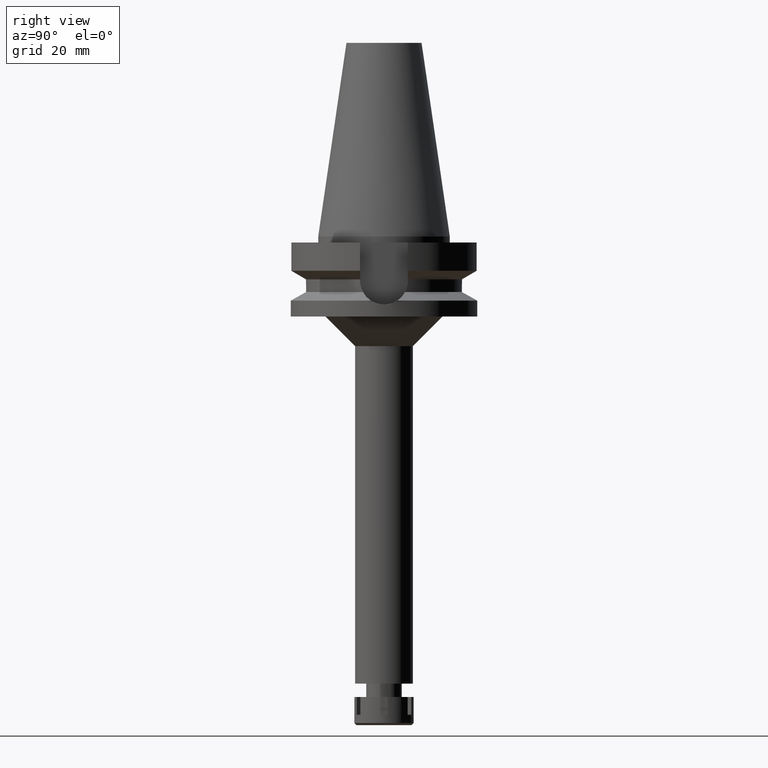
[diagram: clean part render]
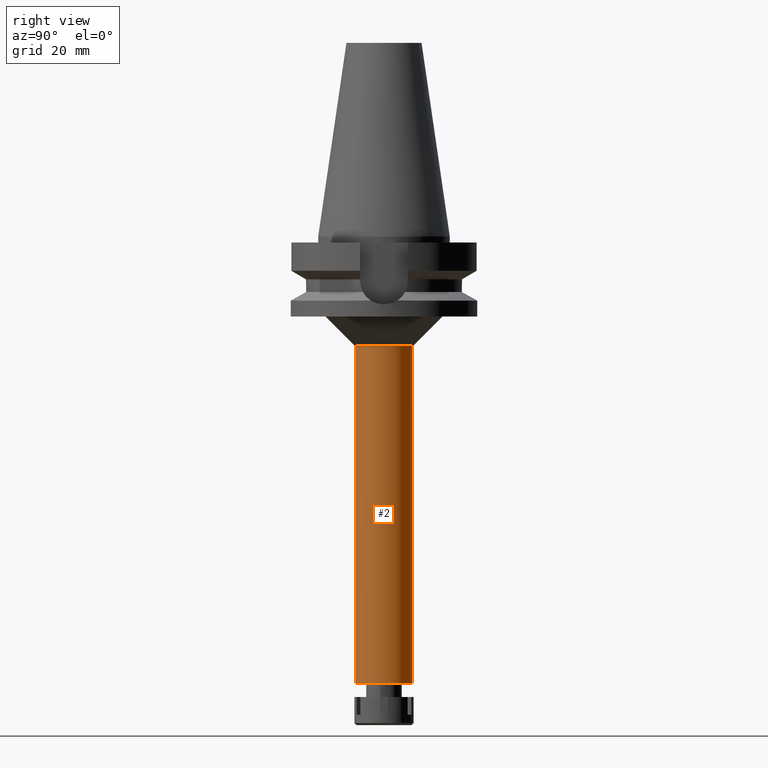
[diagram: same view with one face highlighted and labeled with its STEP entity id]
A machine part, right view. The second image highlights one B-rep face of the part: STEP entity #2.
In plain terms, the highlighted cylindrical surface (edge-blend (fillet) strip) has radius 9.75 mm, axis along (0, 0, -1).
Its self-contained STEP definition (entity closure, byte-faithful):
#2 = ADVANCED_FACE ( 'NONE', ( #3375 ), #7, .T. ) ;
#7 = CYLINDRICAL_SURFACE ( 'NONE', #237, 9.750000000000000000 ) ;
#237 = AXIS2_PLACEMENT_3D ( 'NONE', #801, #1712, #850 ) ;
#323 = EDGE_LOOP ( 'NONE', ( #2376, #2798, #1320, #1303 ) ) ;
#342 = CARTESIAN_POINT ( 'NONE',  ( 0.0000000000000000000, -9.750000000000000000, -37.00000000000000000 ) ) ;
#348 = EDGE_CURVE ( 'NONE', #1219, #350, #1170, .T. ) ;
#350 = VERTEX_POINT ( 'NONE', #1505 ) ;
#385 = DIRECTION ( 'NONE',  ( 0.0000000000000000000, 0.0000000000000000000, -1.000000000000000000 ) ) ;
#496 = EDGE_CURVE ( 'NONE', #1799, #1398, #2860, .T. ) ;
#651 = CARTESIAN_POINT ( 'NONE',  ( 0.0000000000000000000, 9.750000000000000000, -37.00000000000000000 ) ) ;
#773 = DIRECTION ( 'NONE',  ( 0.0000000000000000000, 1.000000000000000000, 0.0000000000000000000 ) ) ;
#801 = CARTESIAN_POINT ( 'NONE',  ( 0.0000000000000000000, 2.163583500053999606E-14, 76.67000000000000171 ) ) ;
#850 = DIRECTION ( 'NONE',  ( 0.0000000000000000000, -1.000000000000000000, 0.0000000000000000000 ) ) ;
#1045 = VECTOR ( 'NONE', #1270, 1000.000000000000000 ) ;
#1170 = LINE ( 'NONE', #651, #3166 ) ;
#1219 = VERTEX_POINT ( 'NONE', #1484 ) ;
#1270 = DIRECTION ( 'NONE',  ( 0.0000000000000000000, 0.0000000000000000000, -1.000000000000000000 ) ) ;
#1297 = CARTESIAN_POINT ( 'NONE',  ( 0.0000000000000000000, 0.0000000000000000000, -37.00000000000000000 ) ) ;
#1303 = ORIENTED_EDGE ( 'NONE', *, *, #348, .F. ) ;
#1320 = ORIENTED_EDGE ( 'NONE', *, *, #2916, .T. ) ;
#1398 = VERTEX_POINT ( 'NONE', #2830 ) ;
#1405 = AXIS2_PLACEMENT_3D ( 'NONE', #3573, #2741, #1585 ) ;
#1484 = CARTESIAN_POINT ( 'NONE',  ( 0.0000000000000000000, 9.750000000000000000, -37.00000000000000000 ) ) ;
#1505 = CARTESIAN_POINT ( 'NONE',  ( 0.0000000000000000000, 9.750000000000000000, -151.0000000000000000 ) ) ;
#1585 = DIRECTION ( 'NONE',  ( 0.0000000000000000000, -1.000000000000000000, 0.0000000000000000000 ) ) ;
#1598 = AXIS2_PLACEMENT_3D ( 'NONE', #1297, #3056, #773 ) ;
#1712 = DIRECTION ( 'NONE',  ( 0.0000000000000000000, 0.0000000000000000000, -1.000000000000000000 ) ) ;
#1799 = VERTEX_POINT ( 'NONE', #2159 ) ;
#2159 = CARTESIAN_POINT ( 'NONE',  ( 0.0000000000000000000, -9.750000000000000000, -37.00000000000000000 ) ) ;
#2181 = CIRCLE ( 'NONE', #1405, 9.750000000000000000 ) ;
#2376 = ORIENTED_EDGE ( 'NONE', *, *, #2966, .T. ) ;
#2741 = DIRECTION ( 'NONE',  ( 0.0000000000000000000, 0.0000000000000000000, 1.000000000000000000 ) ) ;
#2798 = ORIENTED_EDGE ( 'NONE', *, *, #496, .T. ) ;
#2830 = CARTESIAN_POINT ( 'NONE',  ( 0.0000000000000000000, -9.750000000000000000, -151.0000000000000000 ) ) ;
#2860 = LINE ( 'NONE', #342, #1045 ) ;
#2916 = EDGE_CURVE ( 'NONE', #1398, #350, #2181, .T. ) ;
#2948 = CIRCLE ( 'NONE', #1598, 9.750000000000000000 ) ;
#2966 = EDGE_CURVE ( 'NONE', #1219, #1799, #2948, .T. ) ;
#3056 = DIRECTION ( 'NONE',  ( 0.0000000000000000000, 0.0000000000000000000, -1.000000000000000000 ) ) ;
#3166 = VECTOR ( 'NONE', #385, 1000.000000000000000 ) ;
#3375 = FACE_OUTER_BOUND ( 'NONE', #323, .T. ) ;
#3573 = CARTESIAN_POINT ( 'NONE',  ( 0.0000000000000000000, 2.163583500053999606E-14, -151.0000000000000000 ) ) ;